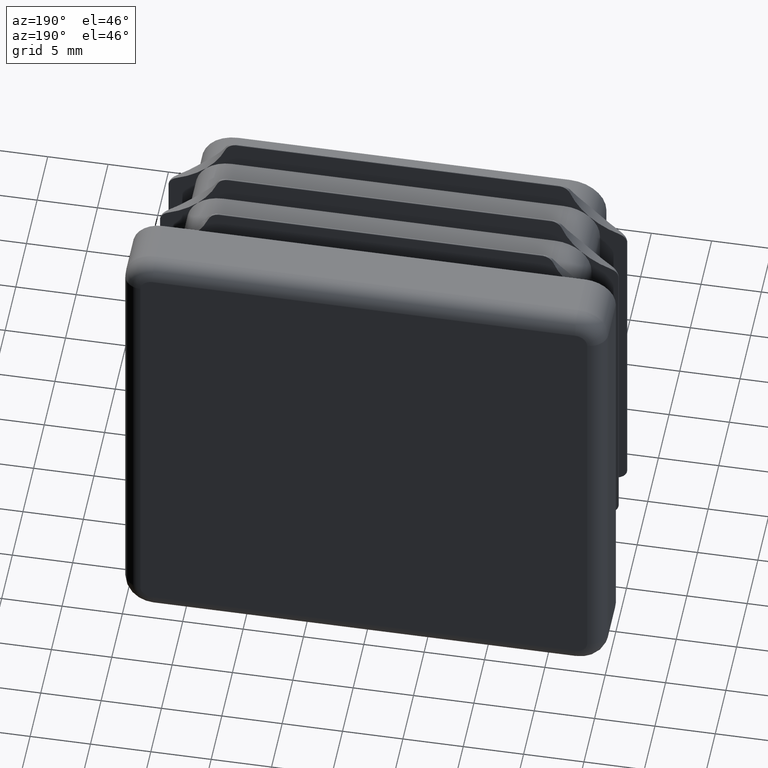
[diagram: clean part render]
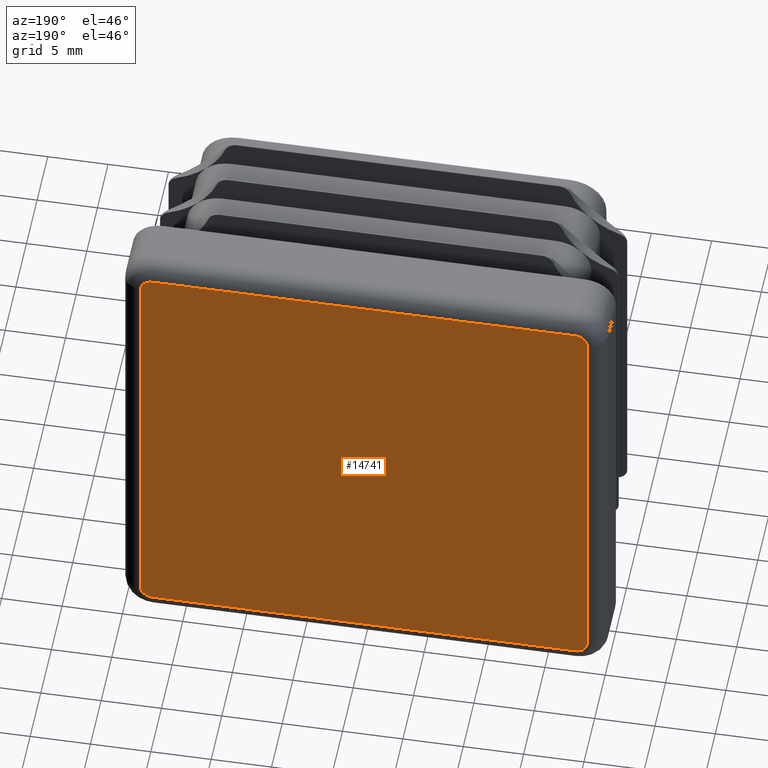
[diagram: same view with one face highlighted and labeled with its STEP entity id]
A machine part, auxiliary view. The second image highlights one B-rep face of the part: STEP entity #14741.
In plain terms, the highlighted planar face has unit normal (0, 1, 0).
Its self-contained STEP definition (entity closure, byte-faithful):
#472 = DIRECTION ( 'NONE',  ( 0.000000000000000000, 1.000000000000000000, 0.000000000000000000 ) ) ;
#617 = CARTESIAN_POINT ( 'NONE',  ( 17.50000000000000711, 5.000000000000000000, -17.49999999999999645 ) ) ;
#665 = LINE ( 'NONE', #14098, #9627 ) ;
#810 = PLANE ( 'NONE',  #2412 ) ;
#867 = CARTESIAN_POINT ( 'NONE',  ( -17.49999999999999645, 5.000000000000000000, 17.50000000000000355 ) ) ;
#911 = CARTESIAN_POINT ( 'NONE',  ( 17.50000000000001066, 5.000000000000000000, 18.50000000000000355 ) ) ;
#985 = AXIS2_PLACEMENT_3D ( 'NONE', #19641, #472, #18174 ) ;
#1417 = VERTEX_POINT ( 'NONE', #19592 ) ;
#1520 = CARTESIAN_POINT ( 'NONE',  ( 18.50000000000000711, 5.000000000000000000, 17.50000000000000711 ) ) ;
#1656 = ORIENTED_EDGE ( 'NONE', *, *, #10188, .T. ) ;
#2062 = CIRCLE ( 'NONE', #8633, 1.000000000000000888 ) ;
#2090 = DIRECTION ( 'NONE',  ( 0.000000000000000000, 0.000000000000000000, 1.000000000000000000 ) ) ;
#2269 = CARTESIAN_POINT ( 'NONE',  ( 0.000000000000000000, 5.000000000000000000, 0.000000000000000000 ) ) ;
#2412 = AXIS2_PLACEMENT_3D ( 'NONE', #2269, #3897, #16730 ) ;
#2704 = CIRCLE ( 'NONE', #10537, 1.000000000000000888 ) ;
#2949 = EDGE_CURVE ( 'NONE', #14920, #10643, #2704, .T. ) ;
#3114 = LINE ( 'NONE', #911, #18754 ) ;
#3387 = ORIENTED_EDGE ( 'NONE', *, *, #14403, .T. ) ;
#3449 = ORIENTED_EDGE ( 'NONE', *, *, #18176, .T. ) ;
#3592 = VECTOR ( 'NONE', #12298, 1000.000000000000000 ) ;
#3897 = DIRECTION ( 'NONE',  ( 0.000000000000000000, 1.000000000000000000, 0.000000000000000000 ) ) ;
#4428 = VERTEX_POINT ( 'NONE', #1520 ) ;
#6187 = EDGE_CURVE ( 'NONE', #10643, #1417, #3114, .T. ) ;
#6425 = FACE_OUTER_BOUND ( 'NONE', #9732, .T. ) ;
#7800 = CARTESIAN_POINT ( 'NONE',  ( -17.49999999999999645, 5.000000000000000000, 18.50000000000000711 ) ) ;
#7839 = EDGE_CURVE ( 'NONE', #14883, #10003, #17482, .T. ) ;
#8325 = CARTESIAN_POINT ( 'NONE',  ( 18.50000000000000355, 5.000000000000000000, -17.49999999999999645 ) ) ;
#8633 = AXIS2_PLACEMENT_3D ( 'NONE', #617, #11791, #2090 ) ;
#9484 = EDGE_CURVE ( 'NONE', #11284, #14883, #2062, .T. ) ;
#9546 = DIRECTION ( 'NONE',  ( 0.000000000000000000, 1.000000000000000000, 0.000000000000000000 ) ) ;
#9627 = VECTOR ( 'NONE', #10823, 1000.000000000000000 ) ;
#9732 = EDGE_LOOP ( 'NONE', ( #10724, #18961, #3387, #10288, #17222, #1656, #3449, #15508 ) ) ;
#9988 = VERTEX_POINT ( 'NONE', #18293 ) ;
#10003 = VERTEX_POINT ( 'NONE', #13512 ) ;
#10081 = AXIS2_PLACEMENT_3D ( 'NONE', #15884, #9546, #14421 ) ;
#10188 = EDGE_CURVE ( 'NONE', #10003, #9988, #11972, .T. ) ;
#10288 = ORIENTED_EDGE ( 'NONE', *, *, #9484, .T. ) ;
#10537 = AXIS2_PLACEMENT_3D ( 'NONE', #867, #13377, #15130 ) ;
#10538 = CARTESIAN_POINT ( 'NONE',  ( -18.49999999999999645, 5.000000000000000000, 17.50000000000000355 ) ) ;
#10643 = VERTEX_POINT ( 'NONE', #7800 ) ;
#10724 = ORIENTED_EDGE ( 'NONE', *, *, #6187, .T. ) ;
#10745 = VECTOR ( 'NONE', #15982, 1000.000000000000000 ) ;
#10823 = DIRECTION ( 'NONE',  ( -8.673617379884035472E-17, 0.000000000000000000, -1.000000000000000000 ) ) ;
#10966 = CARTESIAN_POINT ( 'NONE',  ( -17.49999999999999645, 5.000000000000000000, -18.49999999999999645 ) ) ;
#11284 = VERTEX_POINT ( 'NONE', #8325 ) ;
#11791 = DIRECTION ( 'NONE',  ( 0.000000000000000000, 1.000000000000000000, 0.000000000000000000 ) ) ;
#11972 = CIRCLE ( 'NONE', #10081, 1.000000000000000888 ) ;
#12298 = DIRECTION ( 'NONE',  ( -1.000000000000000000, 0.000000000000000000, 0.000000000000000000 ) ) ;
#12847 = CARTESIAN_POINT ( 'NONE',  ( -18.49999999999999645, 5.000000000000000000, 17.50000000000000711 ) ) ;
#13377 = DIRECTION ( 'NONE',  ( 0.000000000000000000, 1.000000000000000000, 0.000000000000000000 ) ) ;
#13512 = CARTESIAN_POINT ( 'NONE',  ( -17.49999999999999645, 5.000000000000000000, -18.49999999999999645 ) ) ;
#14098 = CARTESIAN_POINT ( 'NONE',  ( 18.50000000000000355, 5.000000000000000000, -17.49999999999999645 ) ) ;
#14240 = CIRCLE ( 'NONE', #985, 1.000000000000000888 ) ;
#14261 = LINE ( 'NONE', #12847, #10745 ) ;
#14403 = EDGE_CURVE ( 'NONE', #4428, #11284, #665, .T. ) ;
#14421 = DIRECTION ( 'NONE',  ( 0.000000000000000000, 0.000000000000000000, 1.000000000000000000 ) ) ;
#14741 = ADVANCED_FACE ( 'NONE', ( #6425 ), #810, .T. ) ;
#14883 = VERTEX_POINT ( 'NONE', #18437 ) ;
#14920 = VERTEX_POINT ( 'NONE', #10538 ) ;
#15130 = DIRECTION ( 'NONE',  ( 0.000000000000000000, 0.000000000000000000, 1.000000000000000000 ) ) ;
#15508 = ORIENTED_EDGE ( 'NONE', *, *, #2949, .T. ) ;
#15884 = CARTESIAN_POINT ( 'NONE',  ( -17.49999999999999645, 5.000000000000000000, -17.49999999999999645 ) ) ;
#15982 = DIRECTION ( 'NONE',  ( 8.673617379884035472E-17, -0.000000000000000000, 1.000000000000000000 ) ) ;
#16730 = DIRECTION ( 'NONE',  ( 0.000000000000000000, -0.000000000000000000, 1.000000000000000000 ) ) ;
#16830 = DIRECTION ( 'NONE',  ( 1.000000000000000000, -0.000000000000000000, 0.000000000000000000 ) ) ;
#17222 = ORIENTED_EDGE ( 'NONE', *, *, #7839, .T. ) ;
#17482 = LINE ( 'NONE', #10966, #3592 ) ;
#18174 = DIRECTION ( 'NONE',  ( 0.000000000000000000, 0.000000000000000000, 1.000000000000000000 ) ) ;
#18176 = EDGE_CURVE ( 'NONE', #9988, #14920, #14261, .T. ) ;
#18293 = CARTESIAN_POINT ( 'NONE',  ( -18.50000000000000000, 5.000000000000000000, -17.49999999999999645 ) ) ;
#18437 = CARTESIAN_POINT ( 'NONE',  ( 17.50000000000000711, 5.000000000000000000, -18.50000000000000000 ) ) ;
#18754 = VECTOR ( 'NONE', #16830, 1000.000000000000000 ) ;
#18924 = EDGE_CURVE ( 'NONE', #1417, #4428, #14240, .T. ) ;
#18961 = ORIENTED_EDGE ( 'NONE', *, *, #18924, .T. ) ;
#19592 = CARTESIAN_POINT ( 'NONE',  ( 17.50000000000000711, 5.000000000000000000, 18.50000000000000355 ) ) ;
#19641 = CARTESIAN_POINT ( 'NONE',  ( 17.50000000000000711, 5.000000000000000000, 17.50000000000000711 ) ) ;